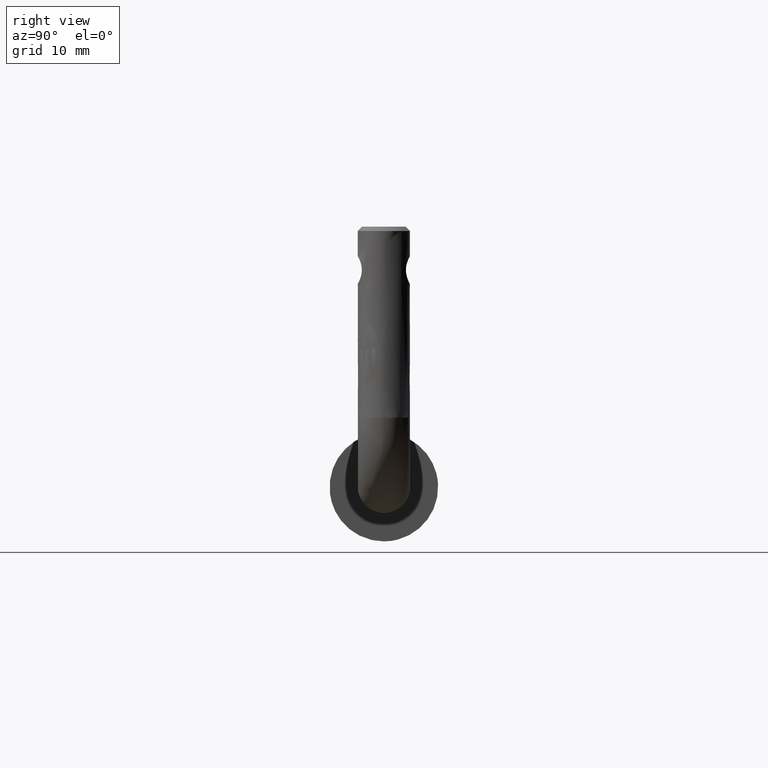
[diagram: clean part render]
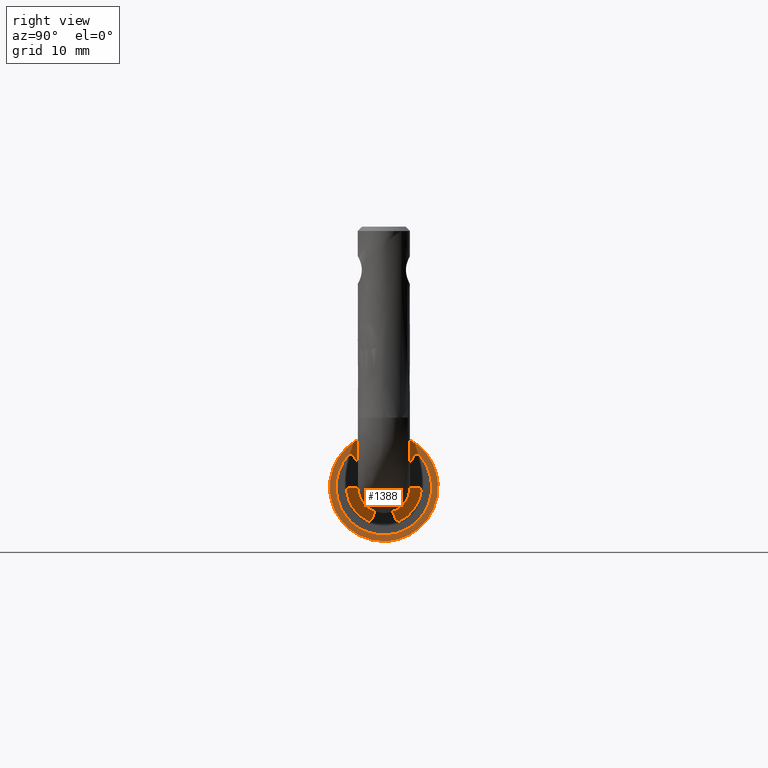
[diagram: same view with one face highlighted and labeled with its STEP entity id]
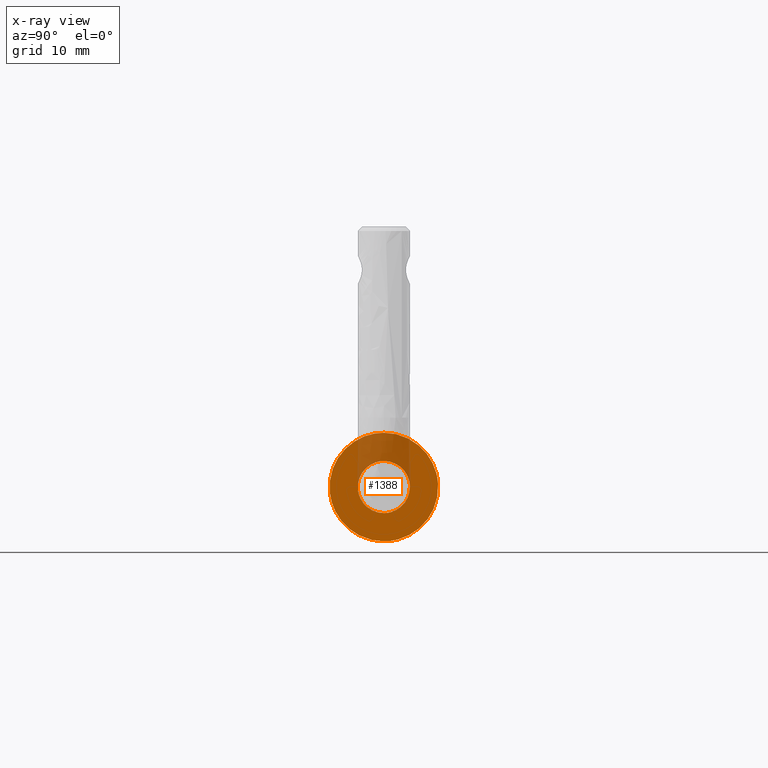
[diagram: x-ray of the same camera — body ghosted, the highlighted face saturated]
A machine part, right view. The second image highlights one B-rep face of the part: STEP entity #1388.
The next image is the same camera in x-ray: the body ghosted, the highlighted face saturated — about 23% of this face is hidden behind the body in this view.
In plain terms, the highlighted face is a freeform B-spline surface patch.
Its self-contained STEP definition (entity closure, byte-faithful):
#1037=CARTESIAN_POINT('',(20.0,2.994404395253784,16.183145618797770));
#1038=VERTEX_POINT('',#1037);
#1044=CARTESIAN_POINT('',(20.0,0.0,19.0));
#1045=VERTEX_POINT('',#1044);
#1046=CARTESIAN_POINT('',(20.0,0.0,19.0));
#1047=CARTESIAN_POINT('',(20.0,2.822118200352236,19.0));
#1048=CARTESIAN_POINT('',(19.999999999999996,2.994404395253784,16.183145618797774));
#1056=(BOUNDED_CURVE()B_SPLINE_CURVE(2,(#1046,#1047,#1048),.UNSPECIFIED.,.F.,.U.)B_SPLINE_CURVE_WITH_KNOTS((3,3),(0.500000000000000,0.739332962219703),.UNSPECIFIED.)CURVE()GEOMETRIC_REPRESENTATION_ITEM()RATIONAL_B_SPLINE_CURVE((1.0,0.719603993309252,0.976072041625482))REPRESENTATION_ITEM(''));
#1057=EDGE_CURVE('',#1045,#1038,#1056,.T.);
#1059=CARTESIAN_POINT('',(20.0,-2.979028579072992,15.645897295878230));
#1060=VERTEX_POINT('',#1059);
#1061=CARTESIAN_POINT('',(19.999999999999996,-2.979028579072991,15.645897295878237));
#1062=CARTESIAN_POINT('',(19.999999999999996,-3.0,15.822327640891174));
#1063=CARTESIAN_POINT('',(20.0,-3.0,16.0));
#1064=CARTESIAN_POINT('',(19.999999999999996,-3.0,18.999999999999993));
#1065=CARTESIAN_POINT('',(20.0,0.0,19.0));
#1073=(BOUNDED_CURVE()B_SPLINE_CURVE(2,(#1061,#1062,#1063,#1064,#1065),.UNSPECIFIED.,.F.,.U.)B_SPLINE_CURVE_WITH_KNOTS((3,2,3),(0.229562473498455,0.250000000000000,0.500000000000000),.UNSPECIFIED.)CURVE()GEOMETRIC_REPRESENTATION_ITEM()RATIONAL_B_SPLINE_CURVE((0.956026754154195,0.976055948313510,1.0,0.707106781186548,1.0))REPRESENTATION_ITEM(''));
#1074=EDGE_CURVE('',#1060,#1045,#1073,.T.);
#1118=CARTESIAN_POINT('',(20.0,0.0,13.0));
#1119=VERTEX_POINT('',#1118);
#1120=CARTESIAN_POINT('',(20.0,0.0,13.0));
#1121=CARTESIAN_POINT('',(20.000000000000004,-2.664523577581198,13.000000000000005));
#1122=CARTESIAN_POINT('',(20.000000000000004,-2.979028579072992,15.645897295878234));
#1130=(BOUNDED_CURVE()B_SPLINE_CURVE(2,(#1120,#1121,#1122),.UNSPECIFIED.,.F.,.U.)B_SPLINE_CURVE_WITH_KNOTS((3,3),(0.0,0.229562473498456),.UNSPECIFIED.)CURVE()GEOMETRIC_REPRESENTATION_ITEM()RATIONAL_B_SPLINE_CURVE((1.0,0.731050832873038,0.956026754154195))REPRESENTATION_ITEM(''));
#1131=EDGE_CURVE('',#1119,#1060,#1130,.T.);
#1133=CARTESIAN_POINT('',(20.000000000000004,2.994404395253783,16.183145618797777));
#1134=CARTESIAN_POINT('',(19.999999999999996,3.000000000000000,16.091658290089516));
#1135=CARTESIAN_POINT('',(20.0,3.0,16.0));
#1136=CARTESIAN_POINT('',(19.999999999999996,3.0,13.000000000000004));
#1137=CARTESIAN_POINT('',(20.0,0.0,13.0));
#1145=(BOUNDED_CURVE()B_SPLINE_CURVE(2,(#1133,#1134,#1135,#1136,#1137),.UNSPECIFIED.,.F.,.U.)B_SPLINE_CURVE_WITH_KNOTS((3,2,3),(0.739332962219702,0.750000000000000,1.0),.UNSPECIFIED.)CURVE()GEOMETRIC_REPRESENTATION_ITEM()RATIONAL_B_SPLINE_CURVE((0.976072041625481,0.987502787877296,1.0,0.707106781186548,1.0))REPRESENTATION_ITEM(''));
#1146=EDGE_CURVE('',#1038,#1119,#1145,.T.);
#1208=CARTESIAN_POINT('',(20.0,-6.206309539763800,15.262286033318571));
#1209=VERTEX_POINT('',#1208);
#1215=CARTESIAN_POINT('',(20.0,0.0,22.250000000000000));
#1216=VERTEX_POINT('',#1215);
#1217=CARTESIAN_POINT('',(19.999999999999996,-6.206309539763800,15.262286033318574));
#1218=CARTESIAN_POINT('',(20.000000000000007,-6.250000000000001,15.629849252098067));
#1219=CARTESIAN_POINT('',(20.0,-6.250000000000000,16.0));
#1220=CARTESIAN_POINT('',(20.0,-6.249999999999999,22.250000000000000));
#1221=CARTESIAN_POINT('',(20.0,0.0,22.250000000000000));
#1229=(BOUNDED_CURVE()B_SPLINE_CURVE(2,(#1217,#1218,#1219,#1220,#1221),.UNSPECIFIED.,.F.,.U.)B_SPLINE_CURVE_WITH_KNOTS((3,2,3),(0.229562473511468,0.250000000000000,0.500000000000000),.UNSPECIFIED.)CURVE()GEOMETRIC_REPRESENTATION_ITEM()RATIONAL_B_SPLINE_CURVE((0.956026754179700,0.976055948328754,1.0,0.707106781186547,1.0))REPRESENTATION_ITEM(''));
#1230=EDGE_CURVE('',#1209,#1216,#1229,.T.);
#1232=CARTESIAN_POINT('',(20.0,6.238342484675471,16.381553461382630));
#1233=VERTEX_POINT('',#1232);
#1234=CARTESIAN_POINT('',(20.0,0.0,22.250000000000000));
#1235=CARTESIAN_POINT('',(19.999999999999996,5.879412749541285,22.249999999999996));
#1236=CARTESIAN_POINT('',(20.0,6.238342484675471,16.381553461382634));
#1244=(BOUNDED_CURVE()B_SPLINE_CURVE(2,(#1234,#1235,#1236),.UNSPECIFIED.,.F.,.U.)B_SPLINE_CURVE_WITH_KNOTS((3,3),(0.500000000000000,0.739332957302623),.UNSPECIFIED.)CURVE()GEOMETRIC_REPRESENTATION_ITEM()RATIONAL_B_SPLINE_CURVE((1.0,0.719603999069969,0.976072031087244))REPRESENTATION_ITEM(''));
#1245=EDGE_CURVE('',#1216,#1233,#1244,.T.);
#1319=CARTESIAN_POINT('',(20.0,0.0,9.750000000000000));
#1320=VERTEX_POINT('',#1319);
#1321=CARTESIAN_POINT('',(20.000000000000004,6.238342484675471,16.381553461382630));
#1322=CARTESIAN_POINT('',(20.000000000000004,6.250000000000000,16.190954860156317));
#1323=CARTESIAN_POINT('',(20.0,6.250000000000000,16.0));
#1324=CARTESIAN_POINT('',(20.0,6.249999999999999,9.750000000000000));
#1325=CARTESIAN_POINT('',(20.0,0.0,9.750000000000000));
#1333=(BOUNDED_CURVE()B_SPLINE_CURVE(2,(#1321,#1322,#1323,#1324,#1325),.UNSPECIFIED.,.F.,.U.)B_SPLINE_CURVE_WITH_KNOTS((3,2,3),(0.739332957302623,0.750000000000000,1.0),.UNSPECIFIED.)CURVE()GEOMETRIC_REPRESENTATION_ITEM()RATIONAL_B_SPLINE_CURVE((0.976072031087245,0.987502782116579,1.0,0.707106781186547,1.0))REPRESENTATION_ITEM(''));
#1334=EDGE_CURVE('',#1233,#1320,#1333,.T.);
#1336=CARTESIAN_POINT('',(20.0,0.0,9.750000000000000));
#1337=CARTESIAN_POINT('',(20.000000000000011,-5.551090787057898,9.750000000000002));
#1338=CARTESIAN_POINT('',(20.0,-6.206309539763801,15.262286033318576));
#1346=(BOUNDED_CURVE()B_SPLINE_CURVE(2,(#1336,#1337,#1338),.UNSPECIFIED.,.F.,.U.)B_SPLINE_CURVE_WITH_KNOTS((3,3),(0.0,0.229562473511468),.UNSPECIFIED.)CURVE()GEOMETRIC_REPRESENTATION_ITEM()RATIONAL_B_SPLINE_CURVE((1.0,0.731050832857793,0.956026754179700))REPRESENTATION_ITEM(''));
#1347=EDGE_CURVE('',#1320,#1209,#1346,.T.);
#1371=CARTESIAN_POINT('',(20.0,6.874223208350920,22.874374975772579));
#1372=CARTESIAN_POINT('',(20.0,-6.874261318070673,22.874374975772579));
#1373=CARTESIAN_POINT('',(20.0,6.874223208350920,9.125624688951298));
#1374=CARTESIAN_POINT('',(20.0,-6.874261318070673,9.125624688951298));
#1375=B_SPLINE_SURFACE_WITH_KNOTS('',1,1,((#1371,#1373),(#1372,#1374)),.UNSPECIFIED.,.F.,.F.,.U.,(2,2),(2,2),(0.0,13.748484526421590),(0.0,13.748750286821281),.UNSPECIFIED.);
#1376=ORIENTED_EDGE('',*,*,#1334,.F.);
#1377=ORIENTED_EDGE('',*,*,#1245,.F.);
#1378=ORIENTED_EDGE('',*,*,#1230,.F.);
#1379=ORIENTED_EDGE('',*,*,#1347,.F.);
#1380=EDGE_LOOP('',(#1376,#1377,#1378,#1379));
#1381=FACE_OUTER_BOUND('',#1380,.T.);
#1382=ORIENTED_EDGE('',*,*,#1057,.T.);
#1383=ORIENTED_EDGE('',*,*,#1146,.T.);
#1384=ORIENTED_EDGE('',*,*,#1131,.T.);
#1385=ORIENTED_EDGE('',*,*,#1074,.T.);
#1386=EDGE_LOOP('',(#1382,#1383,#1384,#1385));
#1387=FACE_BOUND('',#1386,.T.);
#1388=ADVANCED_FACE('',(#1381,#1387),#1375,.T.);